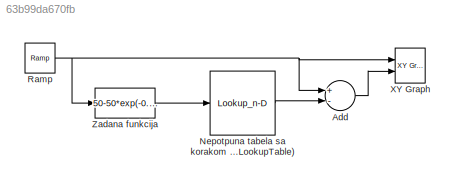
MODEL slx_63b99da670fb
KIND model
CONFIG AbsTol = auto
CONFIG FixedStep = auto
CONFIG MaxStep = auto
CONFIG MinStep = auto
CONFIG RelTol = 1e-3
CONFIG SampleTimeConstraint = Unconstrained
CONFIG Solver = VariableStepAuto
CONFIG SolverMode = Auto
CONFIG SolverName = VariableStepAuto
CONFIG StartTime = 0.0
CONFIG StopTime = 800
BLOCK [Sum] Add
  InputSameDT = off
  Inputs = +-
  OutDataTypeStr = Inherit: Inherit via internal rule
  Ports = [2, 1]
  SaturateOnIntegerOverflow = off
BLOCK [Lookup_n-D] Nepotpuna tabela sa korakom 100 (0,800)   (1-D LookupTable)
  BreakpointsForDimension1 = 50-50*exp(-0.005*[0:100:800])
  InternalRulePriority = Speed
  NumberOfTableDimensions = 1
  Ports = [1, 1]
  RndMeth = Simplest
  Table = [0:100:800]
BLOCK [Reference] Ramp  REF=simulink/Sources/Ramp
  Ports = [0, 1]
  SourceBlock = simulink/Sources/Ramp
  SourceType = Ramp
BLOCK [Reference] XY Graph  REF=simulink/Sinks/XY Graph
  Ports = [2]
  SourceBlock = simulink/Sinks/XY Graph
  SourceType = XY scope.
BLOCK [Fcn] Zadana funkcija
  Expr = 50-50*exp(-0.005*u)
LINE Add:1 -> XY Graph:2
LINE Nepotpuna tabela sa korakom 100 (0,800)   (1-D LookupTable):1 -> Add:2
NET Ramp:1 -> Add:1, XY Graph:1, Zadana funkcija:1
LINE Zadana funkcija:1 -> Nepotpuna tabela sa korakom 100 (0,800)   (1-D LookupTable):1
note: NET lines group one-source signal fan-out (src -> all destinations, sorted); 1:1 wires keep LINE
